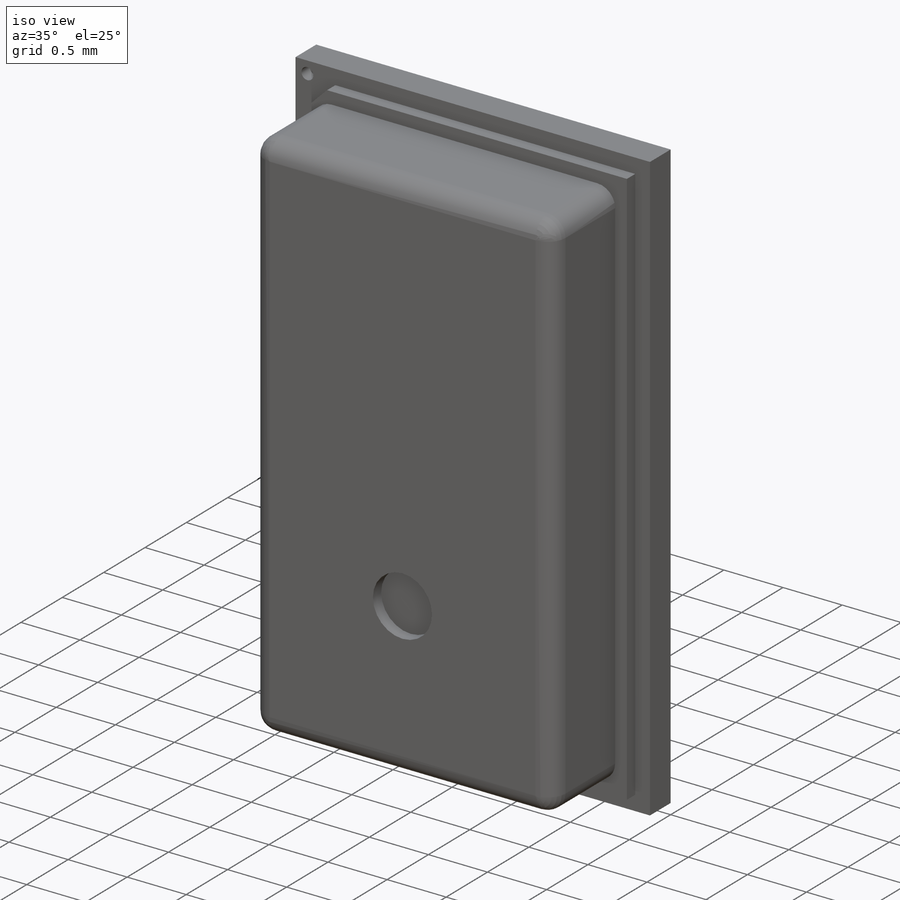
[diagram: iso view]
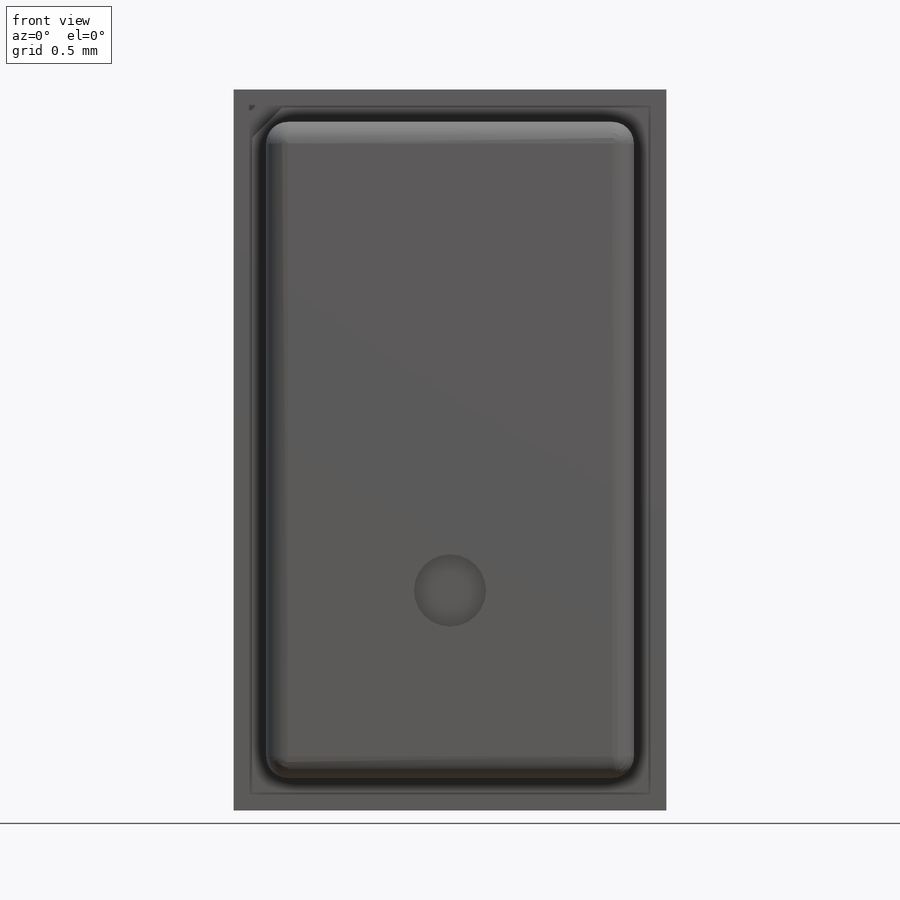
[diagram: front view]
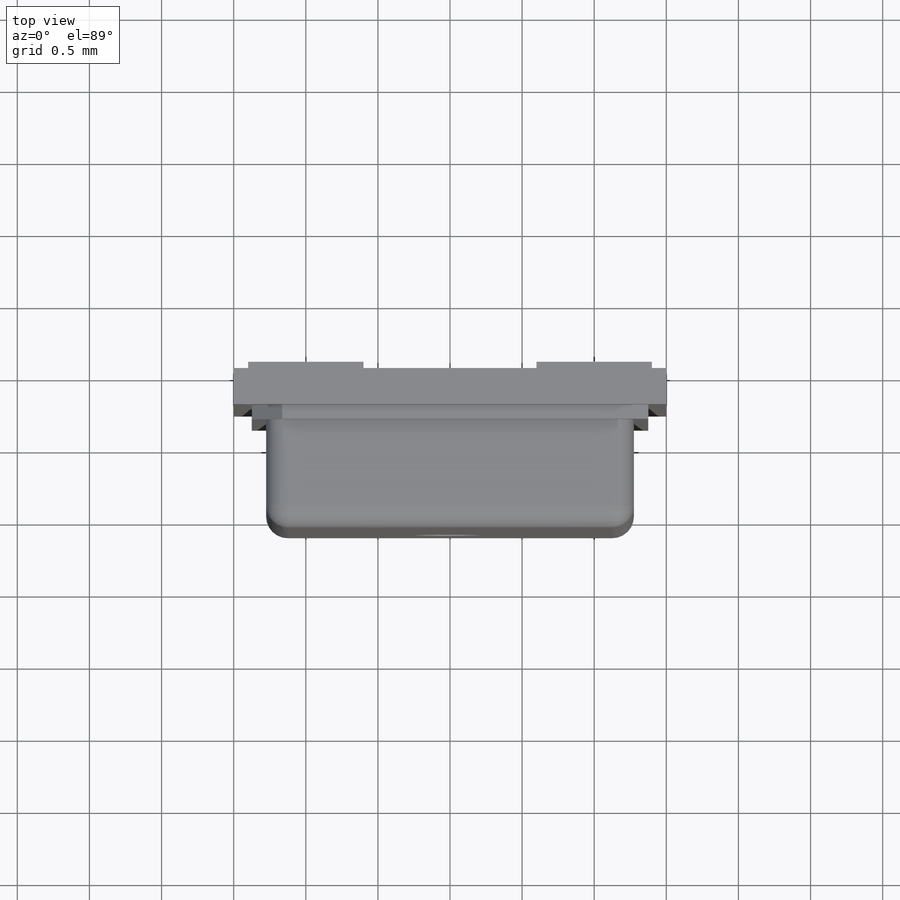
[diagram: top view]
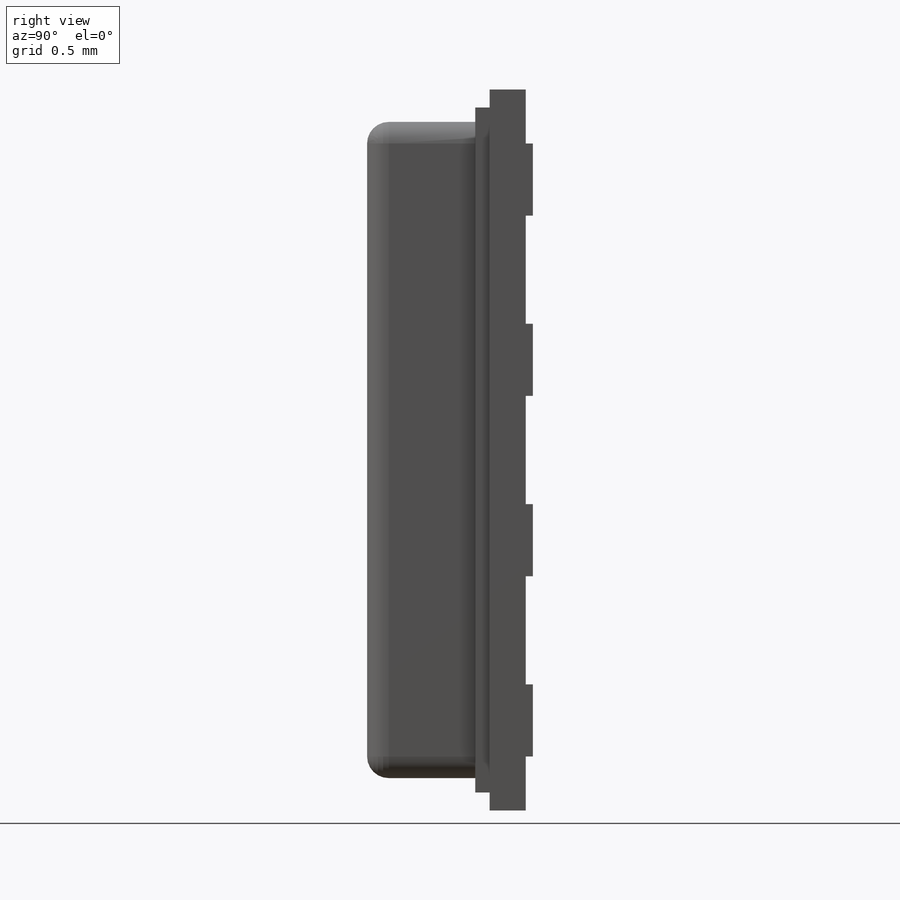
[diagram: right view]
SOLIDWORKS PART (.sldprt)
format: sldprt  version: not decoded by parser v0  size: 274,432 bytes
history: native  units: mm
features: sketch x6, extrude x4, cut_extrude x2, material x1, fillet x1, pattern_linear x1 (+13 scaffold rows collapsed)
feature tree (28):
  scaffold x13  (default folders/planes/origin — collapsed)
  material  "Material <not specified>"
  sketch  "Sketch1"  dims[D1=5.0mm D2=3.0mm]
  extrude  "Boss-Extrude1"  Depth=0.25mm
  sketch  "Sketch3"  dims[c1.D1=4.75mm c1.D2=2.75mm c1.D3=~0.353173mm c2.D3=45.0deg c2.D4=0.3mm]
  extrude  "Boss-Extrude3"  Depth=0.1mm
  sketch  "Sketch2"  dims[D1=2.55mm D2=4.55mm]
  extrude  "Boss-Extrude2"  Depth=0.85mm
  fillet  "Fillet1"  Radius=0.15mm
  sketch  "Sketch4"  dims[D2=0.5mm D1=1.3mm]
  cut_extrude  "Cut-Extrude1"  Depth=0.1mm
  sketch  "Sketch5"  dims[D3=0.1mm D1=0.1mm D2=0.1mm]
  cut_extrude  "Cut-Extrude2"  Depth=0.1mm
  sketch  "Sketch6"  dims[D1=0.5mm D2=0.8mm D3=1.875mm D4=1.0mm]
  extrude  "Boss-Extrude4"  Depth=0.05mm
  pattern_linear  "LPattern1"  Count1=4 Count2=2 Spacing1=1.25mm Spacing2=2mm
decode coverage: 14 of 14 modeling features carry decoded parameters
note: ~ marks probable driven/reference dimensions
note: suppression state not decoded; provenance and decode notes live in map.json
